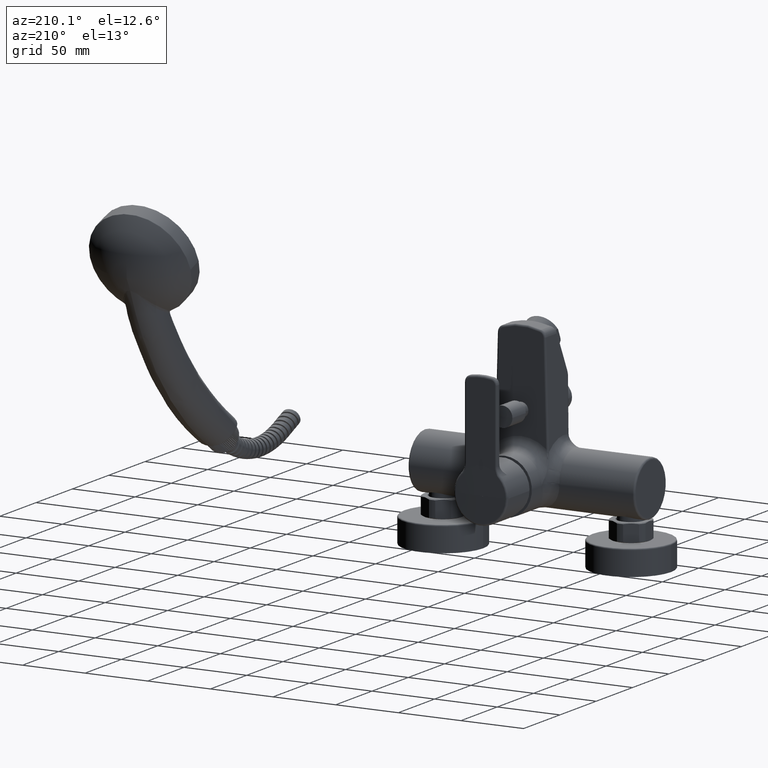
[diagram: clean part render]
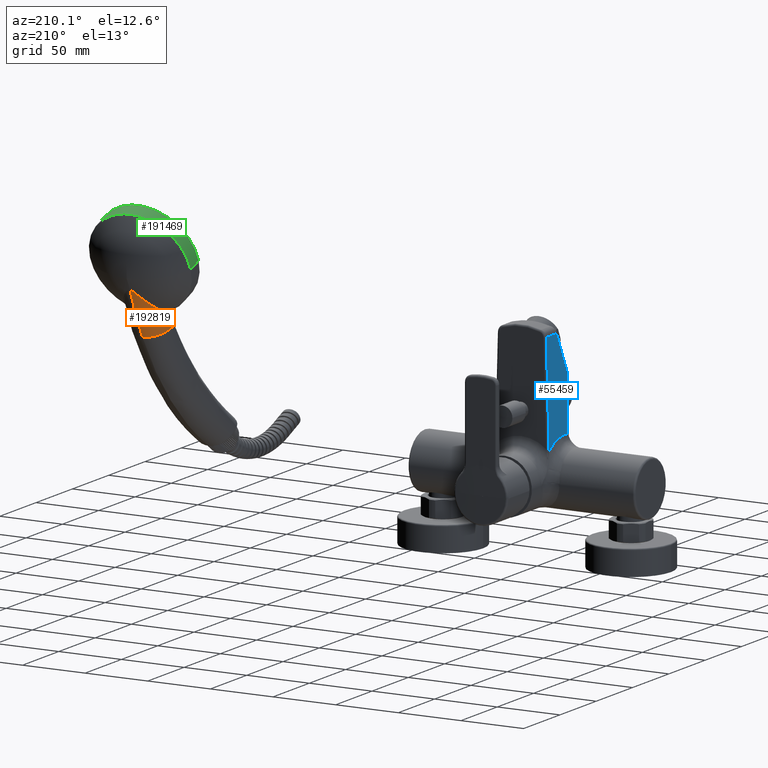
[diagram: same view with three faces highlighted in distinct colors, each labeled with its STEP entity id]
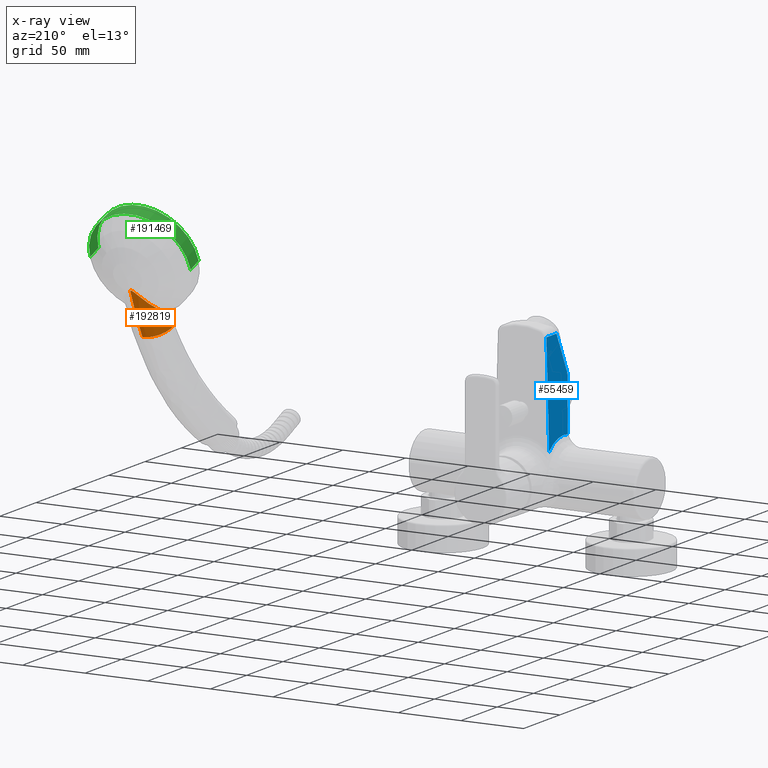
[diagram: x-ray of the same camera — body ghosted, the three highlighted faces saturated]
A machine part, auxiliary view with three faces highlighted in distinct colors.
The next image is the same camera in x-ray (body ghosted, the three faces saturated) — at least one of them is partly hidden behind the body in this view.
Their STEP definitions:

[orange] entity #192819 — the highlighted face is a freeform B-spline surface patch.
#184497=CARTESIAN_POINT('',(1.850624867143E2,1.892127236692E2,
1.297713518177E2));
#184498=CARTESIAN_POINT('',(1.850780240706E2,1.894557834207E2,
1.298614298418E2));
#184499=CARTESIAN_POINT('',(1.851152092229E2,1.899580679498E2,
1.300513541668E2));
#184500=CARTESIAN_POINT('',(1.851926254431E2,1.907615677036E2,
1.303692618716E2));
#184501=CARTESIAN_POINT('',(1.852937346329E2,1.916042730789E2,
1.307149639110E2));
#184502=CARTESIAN_POINT('',(1.854198920306E2,1.924768572541E2,
1.310857594720E2));
#184503=CARTESIAN_POINT('',(1.855711064913E2,1.933675174570E2,
1.314789299215E2));
#184504=CARTESIAN_POINT('',(1.857460994140E2,1.942644063929E2,
1.318903034666E2));
#184505=CARTESIAN_POINT('',(1.859444943816E2,1.951642519032E2,
1.323191295940E2));
#184506=CARTESIAN_POINT('',(1.861668992493E2,1.960686381998E2,
1.327670154797E2));
#184507=CARTESIAN_POINT('',(1.864136193710E2,1.969777198775E2,
1.332350324772E2));
#184508=CARTESIAN_POINT('',(1.866851043089E2,1.978923387437E2,
1.337247137381E2));
#184509=CARTESIAN_POINT('',(1.869804478624E2,1.988087404739E2,
1.342349030873E2));
#184510=CARTESIAN_POINT('',(1.872985174833E2,1.997219950527E2,
1.347635979534E2));
#184511=CARTESIAN_POINT('',(1.876378251103E2,2.006274455421E2,
1.353087627556E2));
#184512=CARTESIAN_POINT('',(1.879972444269E2,2.015224250460E2,
1.358699247788E2));
#184513=CARTESIAN_POINT('',(1.883752689983E2,2.024038741667E2,
1.364463865329E2));
#184514=CARTESIAN_POINT('',(1.887713092749E2,2.032722590584E2,
1.370390317668E2));
#184515=CARTESIAN_POINT('',(1.891860970682E2,2.041303587801E2,
1.376505004635E2));
#184516=CARTESIAN_POINT('',(1.896194435848E2,2.049780893487E2,
1.382815997510E2));
#184517=CARTESIAN_POINT('',(1.900692512086E2,2.058117473686E2,
1.389301336613E2));
#184518=CARTESIAN_POINT('',(1.905346769702E2,2.066289112650E2,
1.395945267956E2));
#184519=CARTESIAN_POINT('',(1.910145256215E2,2.074263394326E2,
1.402722175652E2));
#184520=CARTESIAN_POINT('',(1.915065752976E2,2.081999169753E2,
1.409594042121E2));
#184521=CARTESIAN_POINT('',(1.920085487259E2,2.089463994393E2,
1.416524475380E2));
#184522=CARTESIAN_POINT('',(1.925198682757E2,2.096653348881E2,
1.423502227271E2));
#184523=CARTESIAN_POINT('',(1.930391506762E2,2.103552577824E2,
1.430506120811E2));
#184524=CARTESIAN_POINT('',(1.935644997697E2,2.110149040622E2,
1.437520343245E2));
#184525=CARTESIAN_POINT('',(1.940864834381E2,2.116342468598E2,
1.444410469551E2));
#184526=CARTESIAN_POINT('',(1.945898337403E2,2.121970264814E2,
1.450935188456E2));
#184527=CARTESIAN_POINT('',(1.950560406835E2,2.126834801542E2,
1.456776943571E2));
#184528=CARTESIAN_POINT('',(1.954795910584E2,2.130957326089E2,
1.461888166904E2));
#184529=CARTESIAN_POINT('',(1.958628259733E2,2.134435964104E2,
1.466324808498E2));
#184530=CARTESIAN_POINT('',(1.962100291606E2,2.137382466518E2,
1.470181885325E2));
#184531=CARTESIAN_POINT('',(1.965252040996E2,2.139892280278E2,
1.473547424988E2));
#184532=CARTESIAN_POINT('',(1.968111405568E2,2.142029137623E2,
1.476466261091E2));
#184533=CARTESIAN_POINT('',(1.970708026747E2,2.143839167738E2,
1.478979283441E2));
#184534=CARTESIAN_POINT('',(1.973086919898E2,2.145377430502E2,
1.481141662329E2));
#184535=CARTESIAN_POINT('',(1.975292087325E2,2.146696581586E2,
1.483014766394E2));
#184536=CARTESIAN_POINT('',(1.977379583517E2,2.147849343568E2,
1.484665716903E2));
#184537=CARTESIAN_POINT('',(1.979374238668E2,2.148863346795E2,
1.486128962773E2));
#184538=CARTESIAN_POINT('',(1.981280283479E2,2.149753430022E2,
1.487422037718E2));
#184539=CARTESIAN_POINT('',(1.983101131499E2,2.150533185765E2,
1.488561836809E2));
#184540=CARTESIAN_POINT('',(1.984833406394E2,2.151210393725E2,
1.489558108460E2));
#184541=CARTESIAN_POINT('',(1.986478461347E2,2.151794389809E2,
1.490422579160E2));
#184542=CARTESIAN_POINT('',(1.988041723457E2,2.152294713942E2,
1.491167105807E2));
#184543=CARTESIAN_POINT('',(1.989529363942E2,2.152720677713E2,
1.491804159504E2));
#184544=CARTESIAN_POINT('',(1.990950599831E2,2.153081190103E2,
1.492345821112E2));
#184545=CARTESIAN_POINT('',(1.992316565003E2,2.153384391132E2,
1.492803342025E2));
#184546=CARTESIAN_POINT('',(1.993642109753E2,2.153637641781E2,
1.493187007053E2));
#184547=CARTESIAN_POINT('',(1.994931960651E2,2.153844984784E2,
1.493502511294E2));
#184548=CARTESIAN_POINT('',(1.996186528971E2,2.154009417222E2,
1.493754043459E2));
#184549=CARTESIAN_POINT('',(1.997408471756E2,2.154133958429E2,
1.493945826839E2));
#184550=CARTESIAN_POINT('',(1.998601072572E2,2.154221185927E2,
1.494081390421E2));
#184551=CARTESIAN_POINT('',(1.999767583580E2,2.154273422696E2,
1.494164064186E2));
#184552=CARTESIAN_POINT('',(2.000532204599E2,2.154285754082E2,
1.494184633578E2));
#184553=CARTESIAN_POINT('',(2.000910655965E2,2.154286663787E2,
1.494186979510E2));
#184555=CARTESIAN_POINT('',(2.000910655965E2,2.154286663787E2,
1.494186979510E2));
#184588=CARTESIAN_POINT('',(1.850001122728E2,1.874907710825E2,
1.296886292219E2));
#184590=CARTESIAN_POINT('',(1.850624867143E2,1.892127236692E2,
1.297713518177E2));
#184988=CARTESIAN_POINT('',(1.850001143063E2,1.874917858154E2,
1.296883949699E2));
#184989=CARTESIAN_POINT('',(1.849972612442E2,1.874273168792E2,
1.295405579743E2));
#184990=CARTESIAN_POINT('',(1.849870144331E2,1.871906037385E2,
1.290115472802E2));
#184991=CARTESIAN_POINT('',(1.849694140287E2,1.867518766906E2,
1.281149971761E2));
#184992=CARTESIAN_POINT('',(1.849474263759E2,1.861409719791E2,
1.270186219620E2));
#184993=CARTESIAN_POINT('',(1.849183135538E2,1.852685972066E2,
1.255908797364E2));
#184994=CARTESIAN_POINT('',(1.848673652033E2,1.837441495945E2,
1.230914441629E2));
#184995=CARTESIAN_POINT('',(1.848238128462E2,1.824071713927E2,
1.209675837164E2));
#184996=CARTESIAN_POINT('',(1.847948247772E2,1.815053751702E2,
1.195584480763E2));
#184998=CARTESIAN_POINT('',(1.847948250883E2,1.815051296227E2,
1.195585591063E2));
#184999=CARTESIAN_POINT('',(1.847947800520E2,1.825298000450E2,
1.191694691485E2));
#185000=CARTESIAN_POINT('',(1.849604834924E2,1.845801641407E2,
1.183908597282E2));
#185001=CARTESIAN_POINT('',(1.857095702806E2,1.875822141257E2,
1.172508580853E2));
#185002=CARTESIAN_POINT('',(1.869621550317E2,1.904360972238E2,
1.161670599246E2));
#185003=CARTESIAN_POINT('',(1.887203823883E2,1.930486177249E2,
1.151748699734E2));
#185004=CARTESIAN_POINT('',(1.909787680803E2,1.953047424931E2,
1.143179657867E2));
#185005=CARTESIAN_POINT('',(1.937034361761E2,1.970612235208E2,
1.136507421849E2));
#185006=CARTESIAN_POINT('',(1.967982679342E2,1.981674005198E2,
1.132304308666E2));
#185007=CARTESIAN_POINT('',(1.989917018136E2,1.984085355606E2,
1.131386455220E2));
#185008=CARTESIAN_POINT('',(2.000878135453E2,1.984085518982E2,
1.131385398571E2));
#185010=CARTESIAN_POINT('',(2.000878135453E2,1.984085518982E2,
1.131385398571E2));
#185011=CARTESIAN_POINT('',(2.000879419194E2,1.992313855772E2,
1.145938329263E2));
#185012=CARTESIAN_POINT('',(2.000881359195E2,2.004449428763E2,
1.167884966650E2));
#185013=CARTESIAN_POINT('',(2.000883647092E2,2.018240648949E2,
1.193687493900E2));
#185014=CARTESIAN_POINT('',(2.000884961395E2,2.026016131702E2,
1.208487451574E2));
#185015=CARTESIAN_POINT('',(2.000885950564E2,2.031794981130E2,
1.219614976639E2));
#185016=CARTESIAN_POINT('',(2.000886943154E2,2.037520940313E2,
1.230769810804E2));
#185017=CARTESIAN_POINT('',(2.000887939143E2,2.043193878326E2,
1.241951702041E2));
#185018=CARTESIAN_POINT('',(2.000888938506E2,2.048813665433E2,
1.253160399618E2));
#185019=CARTESIAN_POINT('',(2.000890943941E2,2.059946675272E2,
1.275630904371E2));
#185020=CARTESIAN_POINT('',(2.000898018359E2,2.097962026701E2,
1.354705689566E2));
#185021=CARTESIAN_POINT('',(2.000904971758E2,2.130573480009E2,
1.431698484118E2));
#185022=CARTESIAN_POINT('',(2.000910655965E2,2.154286663787E2,
1.494186979510E2));
#185024=CARTESIAN_POINT('',(1.850624872213E2,1.892127228091E2,
1.297713515144E2));
#185025=CARTESIAN_POINT('',(1.850590432882E2,1.891588176148E2,
1.297511571484E2));
#185026=CARTESIAN_POINT('',(1.850525486845E2,1.890536300906E2,
1.297141071999E2));
#185027=CARTESIAN_POINT('',(1.850439241142E2,1.889039873638E2,
1.296688777798E2));
#185028=CARTESIAN_POINT('',(1.850363308926E2,1.887621522469E2,
1.296328292130E2));
#185029=CARTESIAN_POINT('',(1.850296829875E2,1.886277324027E2,
1.296051713902E2));
#185030=CARTESIAN_POINT('',(1.850238927805E2,1.885001473536E2,
1.295850447299E2));
#185031=CARTESIAN_POINT('',(1.850188846147E2,1.883789017827E2,
1.295717537386E2));
#185032=CARTESIAN_POINT('',(1.850145906379E2,1.882635245652E2,
1.295646957012E2));
#185033=CARTESIAN_POINT('',(1.850109461457E2,1.881534299731E2,
1.295633377276E2));
#185034=CARTESIAN_POINT('',(1.850078945984E2,1.880480232521E2,
1.295672548642E2));
#185035=CARTESIAN_POINT('',(1.850053847982E2,1.879465390293E2,
1.295761581646E2));
#185036=CARTESIAN_POINT('',(1.850033847860E2,1.878485831263E2,
1.295898283384E2));
#185037=CARTESIAN_POINT('',(1.850018732438E2,1.877541294067E2,
1.296080254893E2));
#185038=CARTESIAN_POINT('',(1.850008271196E2,1.876631297358E2,
1.296305254862E2));
#185039=CARTESIAN_POINT('',(1.850002235444E2,1.875751513707E2,
1.296572442127E2));
#185040=CARTESIAN_POINT('',(1.850001060643E2,1.875191659877E2,
1.296775752871E2));
#185041=CARTESIAN_POINT('',(1.850001143063E2,1.874917858154E2,
1.296883949699E2));
#191282=VERTEX_POINT('',#184555);
#191284=VERTEX_POINT('',#184590);
#191285=VERTEX_POINT('',#184588);
#191300=VERTEX_POINT('',#185010);
#191301=VERTEX_POINT('',#184996);
#192666=CARTESIAN_POINT('',(1.855116604351E2,1.974842962492E2,
1.566614524212E2));
#192667=CARTESIAN_POINT('',(1.854930628072E2,1.985922157953E2,
1.562407347172E2));
#192668=CARTESIAN_POINT('',(1.857010435764E2,2.007249836242E2,
1.554308674872E2));
#192669=CARTESIAN_POINT('',(1.865110437118E2,2.037975614522E2,
1.542644246913E2));
#192670=CARTESIAN_POINT('',(1.877101270258E2,2.066680667118E2,
1.531747887066E2));
#192671=CARTESIAN_POINT('',(1.893094107754E2,2.093641495212E2,
1.521512010533E2));
#192672=CARTESIAN_POINT('',(1.913339074309E2,2.118031111711E2,
1.512248193402E2));
#192673=CARTESIAN_POINT('',(1.938265011766E2,2.138419211288E2,
1.504498800357E2));
#192674=CARTESIAN_POINT('',(1.968750302085E2,2.152807185696E2,
1.499025827925E2));
#192675=CARTESIAN_POINT('',(1.991659690180E2,2.155947101617E2,
1.497829716020E2));
#192676=CARTESIAN_POINT('',(2.003492967385E2,2.155670850806E2,
1.497933547652E2));
#192677=CARTESIAN_POINT('',(1.853904119599E2,1.950612050264E2,
1.502846733247E2));
#192678=CARTESIAN_POINT('',(1.853756387821E2,1.961757755438E2,
1.498617267237E2));
#192679=CARTESIAN_POINT('',(1.855391669292E2,1.983319376195E2,
1.490427559009E2));
#192680=CARTESIAN_POINT('',(1.862967112452E2,2.014699336704E2,
1.478451198493E2));
#192681=CARTESIAN_POINT('',(1.874847344086E2,2.044101777526E2,
1.467206896335E2));
#192682=CARTESIAN_POINT('',(1.891277637631E2,2.071516615567E2,
1.456741549392E2));
#192683=CARTESIAN_POINT('',(1.912350560996E2,2.095837522726E2,
1.447515768694E2));
#192684=CARTESIAN_POINT('',(1.938087869443E2,2.115529353539E2,
1.440124413587E2));
#192685=CARTESIAN_POINT('',(1.968862788344E2,2.128958485333E2,
1.435134952670E2));
#192686=CARTESIAN_POINT('',(1.991646777372E2,2.131837314069E2,
1.434068398156E2));
#192687=CARTESIAN_POINT('',(2.003487750947E2,2.131584382895E2,
1.434163056682E2));
#192688=CARTESIAN_POINT('',(1.852396426084E2,1.920435095466E2,
1.423441758459E2));
#192689=CARTESIAN_POINT('',(1.852276736586E2,1.931533374363E2,
1.419233477493E2));
#192690=CARTESIAN_POINT('',(1.853586078395E2,1.953048273545E2,
1.411060374336E2));
#192691=CARTESIAN_POINT('',(1.860796657398E2,1.984514032060E2,
1.399008193971E2));
#192692=CARTESIAN_POINT('',(1.872667605842E2,2.013993465602E2,
1.387677784594E2));
#192693=CARTESIAN_POINT('',(1.889538011882E2,2.041272536451E2,
1.377224086767E2));
#192694=CARTESIAN_POINT('',(1.911370474543E2,2.065062608440E2,
1.368205956389E2));
#192695=CARTESIAN_POINT('',(1.937853973776E2,2.083787891298E2,
1.361243857187E2));
#192696=CARTESIAN_POINT('',(1.968940630569E2,2.096142529671E2,
1.356748546817E2));
#192697=CARTESIAN_POINT('',(1.991638126807E2,2.098738106415E2,
1.355823523419E2));
#192698=CARTESIAN_POINT('',(2.003480253013E2,2.098515105488E2,
1.355916796465E2));
#192699=CARTESIAN_POINT('',(1.850817199826E2,1.888894286605E2,
1.340076419057E2));
#192700=CARTESIAN_POINT('',(1.850701779837E2,1.899772441829E2,
1.335969464946E2));
#192701=CARTESIAN_POINT('',(1.851965170772E2,1.920799906283E2,
1.328024434628E2));
#192702=CARTESIAN_POINT('',(1.859163825085E2,1.951414510369E2,
1.316381790291E2));
#192703=CARTESIAN_POINT('',(1.871185623151E2,1.979953806434E2,
1.305500734047E2));
#192704=CARTESIAN_POINT('',(1.888374377564E2,2.006186325375E2,
1.295530156688E2));
#192705=CARTESIAN_POINT('',(1.910644899439E2,2.028844922503E2,
1.287006549833E2));
#192706=CARTESIAN_POINT('',(1.937566593372E2,2.046425117165E2,
1.280513957090E2));
#192707=CARTESIAN_POINT('',(1.968923663424E2,2.057795534240E2,
1.276399201371E2));
#192708=CARTESIAN_POINT('',(1.991632575071E2,2.060128900079E2,
1.275563557686E2));
#192709=CARTESIAN_POINT('',(2.003472794118E2,2.059924553528E2,
1.275639354679E2));
#192710=CARTESIAN_POINT('',(1.850372754595E2,1.879964757019E2,
1.316623136102E2));
#192711=CARTESIAN_POINT('',(1.850256812442E2,1.890771740779E2,
1.312549428311E2));
#192712=CARTESIAN_POINT('',(1.851527618587E2,1.911637404655E2,
1.304681578404E2));
#192713=CARTESIAN_POINT('',(1.858748023461E2,1.941957125951E2,
1.293185440413E2));
#192714=CARTESIAN_POINT('',(1.870822705596E2,1.970171212485E2,
1.282465574850E2));
#192715=CARTESIAN_POINT('',(1.888090493899E2,1.996056400379E2,
1.272660979069E2));
#192716=CARTESIAN_POINT('',(1.910459081589E2,2.018365573294E2,
1.264293309705E2));
#192717=CARTESIAN_POINT('',(1.937480316779E2,2.035621455890E2,
1.257932126575E2));
#192718=CARTESIAN_POINT('',(1.968910327924E2,2.046729404570E2,
1.253913332702E2));
#192719=CARTESIAN_POINT('',(1.991630642887E2,2.048992150075E2,
1.253098149433E2));
#192720=CARTESIAN_POINT('',(2.003470889835E2,2.048791768777E2,
1.253167765154E2));
#192721=CARTESIAN_POINT('',(1.850150529696E2,1.875595800987E2,
1.304857984681E2));
#192722=CARTESIAN_POINT('',(1.850033985848E2,1.886360752296E2,
1.300803692522E2));
#192723=CARTESIAN_POINT('',(1.851312549978E2,1.907130523568E2,
1.292981206562E2));
#192724=CARTESIAN_POINT('',(1.858548772552E2,1.937274743464E2,
1.281571824350E2));
#192725=CARTESIAN_POINT('',(1.870651883259E2,1.965296770430E2,
1.270946964650E2));
#192726=CARTESIAN_POINT('',(1.887956981899E2,1.990980796903E2,
1.261238626036E2));
#192727=CARTESIAN_POINT('',(1.910369497754E2,2.013093688641E2,
1.252958737545E2));
#192728=CARTESIAN_POINT('',(1.937435750469E2,2.030174370927E2,
1.246668168735E2));
#192729=CARTESIAN_POINT('',(1.968901701609E2,2.041145030560E2,
1.242698256435E2));
#192730=CARTESIAN_POINT('',(1.991629515349E2,2.043370699476E2,
1.241892601290E2));
#192731=CARTESIAN_POINT('',(2.003470000759E2,2.043172023900E2,
1.241958366233E2));
#192732=CARTESIAN_POINT('',(1.849928545668E2,1.870648909631E2,
1.293322606888E2));
#192733=CARTESIAN_POINT('',(1.849811030861E2,1.881394823947E2,
1.289278874665E2));
#192734=CARTESIAN_POINT('',(1.851101587587E2,1.902118110246E2,
1.281482203174E2));
#192735=CARTESIAN_POINT('',(1.858359257364E2,1.932167447461E2,
1.270127370038E2));
#192736=CARTESIAN_POINT('',(1.870493607550E2,1.960078807967E2,
1.259564881876E2));
#192737=CARTESIAN_POINT('',(1.887834556499E2,1.985642530612E2,
1.249920282696E2));
#192738=CARTESIAN_POINT('',(1.910286331662E2,2.007635947912E2,
1.241697246026E2));
#192739=CARTESIAN_POINT('',(1.937392741083E2,2.024609300484E2,
1.235450285002E2));
#192740=CARTESIAN_POINT('',(1.968893194328E2,2.035494049922E2,
1.231510341491E2));
#192741=CARTESIAN_POINT('',(1.991628964621E2,2.037696305845E2,
1.230711935158E2));
#192742=CARTESIAN_POINT('',(2.003468973726E2,2.037499215511E2,
1.230776238202E2));
#192743=CARTESIAN_POINT('',(1.849707361605E2,1.865131002902E2,
1.282048097231E2));
#192744=CARTESIAN_POINT('',(1.849588477878E2,1.875880571088E2,
1.278004705331E2));
#192745=CARTESIAN_POINT('',(1.850895259762E2,1.896606221181E2,
1.270211536644E2));
#192746=CARTESIAN_POINT('',(1.858180095249E2,1.926640514954E2,
1.258874721557E2));
#192747=CARTESIAN_POINT('',(1.870348616908E2,1.954521860871E2,
1.248337670766E2));
#192748=CARTESIAN_POINT('',(1.887724059797E2,1.980045387036E2,
1.238720037305E2));
#192749=CARTESIAN_POINT('',(1.910210459826E2,2.001995350365E2,
1.230518842844E2));
#192750=CARTESIAN_POINT('',(1.937352078484E2,2.018928394490E2,
1.224284709504E2));
#192751=CARTESIAN_POINT('',(1.968885329633E2,2.029777648623E2,
1.220352399812E2));
#192752=CARTESIAN_POINT('',(1.991629172676E2,2.031969420013E2,
1.219557062935E2));
#192753=CARTESIAN_POINT('',(2.003467759091E2,2.031773384659E2,
1.219621445099E2));
#192754=CARTESIAN_POINT('',(1.849487685658E2,1.859015844006E2,
1.271087052047E2));
#192755=CARTESIAN_POINT('',(1.849367003098E2,1.869792897154E2,
1.267031474657E2));
#192756=CARTESIAN_POINT('',(1.850694189468E2,1.890572413132E2,
1.259214712331E2));
#192757=CARTESIAN_POINT('',(1.858011844659E2,1.920676223047E2,
1.247851705359E2));
#192758=CARTESIAN_POINT('',(1.870217412216E2,1.948613100590E2,
1.237295455685E2));
#192759=CARTESIAN_POINT('',(1.887625932241E2,1.974181283734E2,
1.227660423345E2));
#192760=CARTESIAN_POINT('',(1.910142251253E2,1.996167966725E2,
1.219438915436E2));
#192761=CARTESIAN_POINT('',(1.937314041097E2,2.013130839193E2,
1.213180462085E2));
#192762=CARTESIAN_POINT('',(1.968878265004E2,2.023996688767E2,
1.209228058352E2));
#192763=CARTESIAN_POINT('',(1.991630189839E2,2.026190648122E2,
1.208429011384E2));
#192764=CARTESIAN_POINT('',(2.003466343015E2,2.025994538196E2,
1.208494014501E2));
#192765=CARTESIAN_POINT('',(1.849196896321E2,1.850278912027E2,
1.256816255346E2));
#192766=CARTESIAN_POINT('',(1.849073249409E2,1.861115089749E2,
1.252730959160E2));
#192767=CARTESIAN_POINT('',(1.850433075385E2,1.882014767355E2,
1.244853933045E2));
#192768=CARTESIAN_POINT('',(1.857801558590E2,1.912289714746E2,
1.233409809254E2));
#192769=CARTESIAN_POINT('',(1.870059795901E2,1.940379717852E2,
1.222781582489E2));
#192770=CARTESIAN_POINT('',(1.887510021694E2,1.966086388972E2,
1.213076977779E2));
#192771=CARTESIAN_POINT('',(1.910059648134E2,1.988197879547E2,
1.204783526636E2));
#192772=CARTESIAN_POINT('',(1.937264985383E2,2.005268488015E2,
1.198451962714E2));
#192773=CARTESIAN_POINT('',(1.968868618458E2,2.016207761958E2,
1.194441205553E2));
#192774=CARTESIAN_POINT('',(1.991632163055E2,2.018416629334E2,
1.193628478287E2));
#192775=CARTESIAN_POINT('',(2.003464312066E2,2.018218840640E2,
1.193694065465E2));
#192776=CARTESIAN_POINT('',(1.848664884277E2,1.834315745574E2,
1.230690702366E2));
#192777=CARTESIAN_POINT('',(1.848534560668E2,1.845250880678E2,
1.226555823401E2));
#192778=CARTESIAN_POINT('',(1.849968976986E2,1.866346583195E2,
1.218580305418E2));
#192779=CARTESIAN_POINT('',(1.857448697438E2,1.896883724345E2,
1.207013463846E2));
#192780=CARTESIAN_POINT('',(1.869810748831E2,1.925198688283E2,
1.196281518516E2));
#192781=CARTESIAN_POINT('',(1.887329359835E2,1.951109615880E2,
1.186474240343E2));
#192782=CARTESIAN_POINT('',(1.909921330573E2,1.973417670146E2,
1.178064462747E2));
#192783=CARTESIAN_POINT('',(1.937170626287E2,1.990677189720E2,
1.171602316828E2));
#192784=CARTESIAN_POINT('',(1.968844235151E2,2.001758039803E2,
1.167481462141E2));
#192785=CARTESIAN_POINT('',(1.991635337896E2,2.003997375833E2,
1.166644455857E2));
#192786=CARTESIAN_POINT('',(2.003460784632E2,2.003797087706E2,
1.166712673233E2));
#192787=CARTESIAN_POINT('',(1.848207116446E2,1.820197171596E2,
1.208339846839E2));
#192788=CARTESIAN_POINT('',(1.848068682464E2,1.831217672296E2,
1.204161228308E2));
#192789=CARTESIAN_POINT('',(1.849594555026E2,1.852476103824E2,
1.196101084332E2));
#192790=CARTESIAN_POINT('',(1.857203774999E2,1.883209606102E2,
1.184439746900E2));
#192791=CARTESIAN_POINT('',(1.869669378530E2,1.911682416475E2,
1.173633193259E2));
#192792=CARTESIAN_POINT('',(1.887232952539E2,1.937742862747E2,
1.163746890276E2));
#192793=CARTESIAN_POINT('',(1.909827782974E2,1.960219279529E2,
1.155232495535E2));
#192794=CARTESIAN_POINT('',(1.937083104969E2,1.977672858227E2,
1.148636870689E2));
#192795=CARTESIAN_POINT('',(1.968812475144E2,1.988920672127E2,
1.144395715361E2));
#192796=CARTESIAN_POINT('',(1.991637821289E2,1.991199283466E2,
1.143533484778E2));
#192797=CARTESIAN_POINT('',(2.003457937415E2,1.990996835376E2,
1.143606356181E2));
#192798=CARTESIAN_POINT('',(1.847894874806E2,1.810427544689E2,
1.193139650958E2));
#192799=CARTESIAN_POINT('',(1.847749806853E2,1.821504795978E2,
1.188931648395E2));
#192800=CARTESIAN_POINT('',(1.849350849112E2,1.842867952698E2,
1.180815937375E2));
#192801=CARTESIAN_POINT('',(1.857064246472E2,1.873715754937E2,
1.169098900114E2));
#192802=CARTESIAN_POINT('',(1.869607162541E2,1.902273427629E2,
1.158251944903E2));
#192803=CARTESIAN_POINT('',(1.887194915295E2,1.928417649429E2,
1.148319652290E2));
#192804=CARTESIAN_POINT('',(1.909775970845E2,1.951003207621E2,
1.139734988090E2));
#192805=CARTESIAN_POINT('',(1.937020499265E2,1.968599596697E2,
1.133041042134E2));
#192806=CARTESIAN_POINT('',(1.968785797955E2,1.979979505386E2,
1.128707671830E2));
#192807=CARTESIAN_POINT('',(1.991639411298E2,1.982290396363E2,
1.127826642147E2));
#192808=CARTESIAN_POINT('',(2.003456080729E2,1.982086600708E2,
1.127903768558E2));
#192809=B_SPLINE_SURFACE_WITH_KNOTS('',3,3,((#192666,#192667,#192668,#192669,
#192670,#192671,#192672,#192673,#192674,#192675,#192676),(#192677,#192678,
#192679,#192680,#192681,#192682,#192683,#192684,#192685,#192686,#192687),(
#192688,#192689,#192690,#192691,#192692,#192693,#192694,#192695,#192696,#192697,
#192698),(#192699,#192700,#192701,#192702,#192703,#192704,#192705,#192706,
#192707,#192708,#192709),(#192710,#192711,#192712,#192713,#192714,#192715,
#192716,#192717,#192718,#192719,#192720),(#192721,#192722,#192723,#192724,
#192725,#192726,#192727,#192728,#192729,#192730,#192731),(#192732,#192733,
#192734,#192735,#192736,#192737,#192738,#192739,#192740,#192741,#192742),(
#192743,#192744,#192745,#192746,#192747,#192748,#192749,#192750,#192751,#192752,
#192753),(#192754,#192755,#192756,#192757,#192758,#192759,#192760,#192761,
#192762,#192763,#192764),(#192765,#192766,#192767,#192768,#192769,#192770,
#192771,#192772,#192773,#192774,#192775),(#192776,#192777,#192778,#192779,
#192780,#192781,#192782,#192783,#192784,#192785,#192786),(#192787,#192788,
#192789,#192790,#192791,#192792,#192793,#192794,#192795,#192796,#192797),(
#192798,#192799,#192800,#192801,#192802,#192803,#192804,#192805,#192806,#192807,
#192808)),.UNSPECIFIED.,.F.,.F.,.F.,(4,1,1,1,1,1,1,1,1,1,4),(4,1,1,1,1,1,1,1,4),
(1.585951787834E-1,5.833333333333E-1,6.875E-1,7.135416666667E-1,
7.395833333333E-1,7.65625E-1,7.916666666667E-1,8.177083333333E-1,8.4375E-1,
8.958333333333E-1,1.008330337491E0),(-9.988476581407E-3,1.25E-1,2.5E-1,3.75E-1,
5.E-1,6.25E-1,7.5E-1,8.75E-1,1.009802189478E0),.UNSPECIFIED.);
#192811=ORIENTED_EDGE('',*,*,#192810,.T.);
#192813=ORIENTED_EDGE('',*,*,#192812,.T.);
#192814=ORIENTED_EDGE('',*,*,#192649,.T.);
#192815=ORIENTED_EDGE('',*,*,#191920,.F.);
#192816=ORIENTED_EDGE('',*,*,#191954,.T.);
#192817=EDGE_LOOP('',(#192811,#192813,#192814,#192815,#192816));
#192818=FACE_OUTER_BOUND('',#192817,.F.);
#192819=ADVANCED_FACE('',(#192818),#192809,.F.);
#184554=B_SPLINE_CURVE_WITH_KNOTS('',3,(#184497,#184498,#184499,#184500,#184501,
#184502,#184503,#184504,#184505,#184506,#184507,#184508,#184509,#184510,#184511,
#184512,#184513,#184514,#184515,#184516,#184517,#184518,#184519,#184520,#184521,
#184522,#184523,#184524,#184525,#184526,#184527,#184528,#184529,#184530,#184531,
#184532,#184533,#184534,#184535,#184536,#184537,#184538,#184539,#184540,#184541,
#184542,#184543,#184544,#184545,#184546,#184547,#184548,#184549,#184550,#184551,
#184552,#184553),.UNSPECIFIED.,.F.,.F.,(4,1,1,1,1,1,1,1,1,1,1,1,1,1,1,1,1,1,1,1,
1,1,1,1,1,1,1,1,1,1,1,1,1,1,1,1,1,1,1,1,1,1,1,1,1,1,1,1,1,1,1,1,1,1,4),(0.E0,
1.851851851852E-2,3.703703703704E-2,5.555555555556E-2,7.407407407407E-2,
9.259259259259E-2,1.111111111111E-1,1.296296296296E-1,1.481481481481E-1,
1.666666666667E-1,1.851851851852E-1,2.037037037037E-1,2.222222222222E-1,
2.407407407407E-1,2.592592592593E-1,2.777777777778E-1,2.962962962963E-1,
3.148148148148E-1,3.333333333333E-1,3.518518518519E-1,3.703703703704E-1,
3.888888888889E-1,4.074074074074E-1,4.259259259259E-1,4.444444444444E-1,
4.629629629630E-1,4.814814814815E-1,5.E-1,5.185185185185E-1,5.370370370370E-1,
5.555555555556E-1,5.740740740741E-1,5.925925925926E-1,6.111111111111E-1,
6.296296296296E-1,6.481481481481E-1,6.666666666667E-1,6.851851851852E-1,
7.037037037037E-1,7.222222222222E-1,7.407407407407E-1,7.592592592593E-1,
7.777777777778E-1,7.962962962963E-1,8.148148148148E-1,8.333333333333E-1,
8.518518518519E-1,8.703703703704E-1,8.888888888889E-1,9.074074074074E-1,
9.259259259259E-1,9.444444444444E-1,9.629629629630E-1,9.814814814815E-1,1.E0),
.UNSPECIFIED.);
#184997=B_SPLINE_CURVE_WITH_KNOTS('',3,(#184988,#184989,#184990,#184991,#184992,
#184993,#184994,#184995,#184996),.UNSPECIFIED.,.F.,.F.,(4,1,1,1,1,1,4),(0.E0,
4.108673229356E-2,1.476327940976E-1,2.541788559012E-1,3.607249177052E-1,
5.738170413128E-1,1.E0),.UNSPECIFIED.);
#185009=B_SPLINE_CURVE_WITH_KNOTS('',3,(#184998,#184999,#185000,#185001,#185002,
#185003,#185004,#185005,#185006,#185007,#185008),.UNSPECIFIED.,.F.,.F.,(4,1,1,1,
1,1,1,1,4),(0.E0,1.249949237304E-1,2.499956489030E-1,3.749963740756E-1,
4.999970992482E-1,6.249978244209E-1,7.499985495935E-1,8.749992747661E-1,1.E0),
.UNSPECIFIED.);
#185023=B_SPLINE_CURVE_WITH_KNOTS('',3,(#185010,#185011,#185012,#185013,#185014,
#185015,#185016,#185017,#185018,#185019,#185020,#185021,#185022),.UNSPECIFIED.,
.F.,.F.,(4,1,1,1,1,1,1,1,1,1,4),(0.E0,1.250331936500E-1,1.875499794887E-1,
2.188083724081E-1,2.500667653273E-1,2.813251582467E-1,3.125835511661E-1,
3.438419440854E-1,3.751003370047E-1,5.001339086821E-1,1.E0),.UNSPECIFIED.);
#185042=B_SPLINE_CURVE_WITH_KNOTS('',3,(#185024,#185025,#185026,#185027,#185028,
#185029,#185030,#185031,#185032,#185033,#185034,#185035,#185036,#185037,#185038,
#185039,#185040,#185041),.UNSPECIFIED.,.F.,.F.,(4,1,1,1,1,1,1,1,1,1,1,1,1,1,1,
4),(0.E0,6.666666666667E-2,1.333333333333E-1,2.E-1,2.666666666667E-1,
3.333333333333E-1,4.E-1,4.666666666667E-1,5.333333333333E-1,6.E-1,
6.666666666667E-1,7.333333333333E-1,8.E-1,8.666666666667E-1,9.333333333333E-1,
1.E0),.UNSPECIFIED.);
#191920=EDGE_CURVE('',#191284,#191282,#184554,.T.);
#191954=EDGE_CURVE('',#191284,#191285,#185042,.T.);
#192649=EDGE_CURVE('',#191300,#191282,#185023,.T.);
#192810=EDGE_CURVE('',#191285,#191301,#184997,.T.);
#192812=EDGE_CURVE('',#191301,#191300,#185009,.T.);

[blue] entity #55459 — the highlighted planar face has unit normal (-0.9996, 0, 0.0273).
#4663=CARTESIAN_POINT('',(-2.008224333500E1,-7.127864215709E0,
7.031884352193E1));
#4664=CARTESIAN_POINT('',(-2.011394505244E1,-7.084050725611E0,
6.915627976752E1));
#4665=CARTESIAN_POINT('',(-2.017740803356E1,-6.995063303284E0,
6.682896854254E1));
#4666=CARTESIAN_POINT('',(-2.027289350780E1,-6.857937895486E0,
6.332733010568E1));
#4667=CARTESIAN_POINT('',(-2.036833537770E1,-6.718263848445E0,
5.982729071603E1));
#4668=CARTESIAN_POINT('',(-2.046341586335E1,-6.577151813994E0,
5.634050399375E1));
#4669=CARTESIAN_POINT('',(-2.055823170669E1,-6.435101550510E0,
5.286342222053E1));
#4670=CARTESIAN_POINT('',(-2.065403732231E1,-6.290844359248E0,
4.935004356789E1));
#4671=CARTESIAN_POINT('',(-2.075191378497E1,-6.143368828179E0,
4.576072292068E1));
#4672=CARTESIAN_POINT('',(-2.085296605333E1,-5.991708937909E0,
4.205493927999E1));
#4673=CARTESIAN_POINT('',(-2.095837956537E1,-5.834942873406E0,
3.818922036558E1));
#4674=CARTESIAN_POINT('',(-2.106897260595E1,-5.672978368410E0,
3.413355792435E1));
#4675=CARTESIAN_POINT('',(-2.114760115489E1,-5.560364494333E0,
3.125009602150E1));
#4676=CARTESIAN_POINT('',(-2.118802027097E1,-5.503430924326E0,
2.976784809645E1));
#4678=CARTESIAN_POINT('',(-2.117437351220E1,0.E0,3.026830133818E1));
#4679=CARTESIAN_POINT('',(-2.117437430341E1,-2.388769965037E-1,
3.026829868638E1));
#4680=CARTESIAN_POINT('',(-2.117452678158E1,-7.131943443052E-1,
3.026266841753E1));
#4681=CARTESIAN_POINT('',(-2.117519495052E1,-1.413329606987E0,
3.023818086679E1));
#4682=CARTESIAN_POINT('',(-2.117628591526E1,-2.105217143591E0,
3.019816893268E1));
#4683=CARTESIAN_POINT('',(-2.117779214126E1,-2.790858012258E0,
3.014293370625E1));
#4684=CARTESIAN_POINT('',(-2.117971171674E1,-3.472613062169E0,
3.007253919671E1));
#4685=CARTESIAN_POINT('',(-2.118204275708E1,-4.151415041519E0,
2.998705412945E1));
#4686=CARTESIAN_POINT('',(-2.118479130154E1,-4.827990360807E0,
2.988626468131E1));
#4687=CARTESIAN_POINT('',(-2.118689459194E1,-5.278454988545E0,
2.980912034847E1));
#4688=CARTESIAN_POINT('',(-2.118802027097E1,-5.503430924326E0,
2.976784809645E1));
#4690=CARTESIAN_POINT('',(-2.139353984220E1,2.063178487116E1,2.223113493774E1));
#4691=CARTESIAN_POINT('',(-2.138749837582E1,2.039057205005E1,2.245268565831E1));
#4692=CARTESIAN_POINT('',(-2.137562242041E1,1.990097653158E1,2.288807058407E1));
#4693=CARTESIAN_POINT('',(-2.135843798042E1,1.914446537953E1,2.351830954263E1));
#4694=CARTESIAN_POINT('',(-2.134191103774E1,1.836723484097E1,2.412437079508E1));
#4695=CARTESIAN_POINT('',(-2.132606578838E1,1.757023185915E1,2.470545070886E1));
#4696=CARTESIAN_POINT('',(-2.131092662449E1,1.675456557391E1,2.526063235389E1));
#4697=CARTESIAN_POINT('',(-2.129651491689E1,1.592136477635E1,2.578913802851E1));
#4698=CARTESIAN_POINT('',(-2.128285068712E1,1.507187444952E1,2.629023189430E1));
#4699=CARTESIAN_POINT('',(-2.126994634296E1,1.420687261931E1,2.676345936475E1));
#4700=CARTESIAN_POINT('',(-2.125781156850E1,1.332707227149E1,2.720846519011E1));
#4701=CARTESIAN_POINT('',(-2.124645562238E1,1.243316817697E1,2.762490986867E1));
#4702=CARTESIAN_POINT('',(-2.123589240795E1,1.152612405417E1,2.801228352947E1));
#4703=CARTESIAN_POINT('',(-2.122613468286E1,1.060706071295E1,2.837011832645E1));
#4704=CARTESIAN_POINT('',(-2.121719379912E1,9.677130675624E0,2.869799795965E1));
#4705=CARTESIAN_POINT('',(-2.120907924873E1,8.737276568345E0,2.899557433531E1));
#4706=CARTESIAN_POINT('',(-2.120179707008E1,7.788307145759E0,2.926262602973E1));
#4707=CARTESIAN_POINT('',(-2.119535304018E1,6.831032402145E0,2.949894112786E1));
#4708=CARTESIAN_POINT('',(-2.118975514763E1,5.866409854409E0,2.970422689859E1));
#4709=CARTESIAN_POINT('',(-2.118501142406E1,4.895801827426E0,2.987818796327E1));
#4710=CARTESIAN_POINT('',(-2.118112704838E1,3.920514184916E0,3.002063754738E1));
#4711=CARTESIAN_POINT('',(-2.117810625051E1,2.941853771133E0,3.013140878755E1));
#4712=CARTESIAN_POINT('',(-2.117595218582E1,1.961213144725E0,3.021042980197E1));
#4713=CARTESIAN_POINT('',(-2.117465855423E1,9.799001657135E-1,
3.025776804402E1));
#4714=CARTESIAN_POINT('',(-2.117437849008E1,3.265616125487E-1,
3.026829169915E1));
#4715=CARTESIAN_POINT('',(-2.117437578212E1,-5.019859840504E-11,
3.026830110842E1));
#4717=CARTESIAN_POINT('',(-2.139353984220E1,2.063178487116E1,2.223113493774E1));
#4718=CARTESIAN_POINT('',(-2.138825288342E1,2.060978639271E1,2.242502267014E1));
#4719=CARTESIAN_POINT('',(-2.137772365711E1,2.057131995058E1,2.281101118758E1));
#4720=CARTESIAN_POINT('',(-2.136208066234E1,2.053014653666E1,2.338472621125E1));
#4721=CARTESIAN_POINT('',(-2.134658605119E1,2.050547404549E1,2.395292823421E1));
#4722=CARTESIAN_POINT('',(-2.133636331216E1,2.050000006322E1,2.432782023357E1));
#4723=CARTESIAN_POINT('',(-2.133127798719E1,2.05E1,2.451430839643E1));
#4725=DIRECTION('',(2.725866608529E-2,0.E0,9.996284135234E-1));
#4726=VECTOR('',#4725,7.853099112465E1);
#4727=CARTESIAN_POINT('',(-2.133127798719E1,2.05E1,2.451430839643E1));
#4728=LINE('',#4727,#4726);
#4729=DIRECTION('',(5.705857505382E-9,1.E0,2.092469829504E-7));
#4730=VECTOR('',#4729,1.403697410165E1);
#4731=CARTESIAN_POINT('',(-1.919062800286E1,6.463025898346E0,1.030161155296E2));
#4732=LINE('',#4731,#4730);
#4733=CARTESIAN_POINT('',(-1.919062800286E1,6.463025898346E0,1.030161155296E2));
#4734=CARTESIAN_POINT('',(-1.927286981459E1,5.107197834659E0,1.000001464392E2));
#4735=CARTESIAN_POINT('',(-1.942908696549E1,2.523501592368E0,9.427136131467E1));
#4736=CARTESIAN_POINT('',(-1.963850462132E1,-9.162765022667E-1,
8.659160688230E1));
#4737=CARTESIAN_POINT('',(-1.982509854662E1,-3.932385161520E0,
7.974884389463E1));
#4738=CARTESIAN_POINT('',(-1.993554859982E1,-5.678265150381E0,
7.569842592003E1));
#4739=CARTESIAN_POINT('',(-1.998717094136E1,-6.484417380251E0,
7.380533349525E1));
#4741=CARTESIAN_POINT('',(-1.998717094136E1,-6.484417380251E0,
7.380533349525E1));
#4742=CARTESIAN_POINT('',(-1.999015931792E1,-6.531084619411E0,
7.369574390223E1));
#4743=CARTESIAN_POINT('',(-1.999618726877E1,-6.619530773005E0,
7.347468719589E1));
#4744=CARTESIAN_POINT('',(-2.000539346143E1,-6.737674512734E0,
7.313707816801E1));
#4745=CARTESIAN_POINT('',(-2.001473241891E1,-6.840829663768E0,
7.279460039542E1));
#4746=CARTESIAN_POINT('',(-2.002418470183E1,-6.928798846525E0,
7.244796675813E1));
#4747=CARTESIAN_POINT('',(-2.003373368578E1,-7.001426431328E0,
7.209778690535E1));
#4748=CARTESIAN_POINT('',(-2.004335997384E1,-7.058561683251E0,
7.174477216028E1));
#4749=CARTESIAN_POINT('',(-2.005304380541E1,-7.100093024976E0,
7.138964718280E1));
#4750=CARTESIAN_POINT('',(-2.006276835355E1,-7.125953714789E0,
7.103302904896E1));
#4751=CARTESIAN_POINT('',(-2.007251327042E1,-7.136075548624E0,
7.067566395449E1));
#4752=CARTESIAN_POINT('',(-2.007900028917E1,-7.132346053372E0,
7.043777233360E1));
#4753=CARTESIAN_POINT('',(-2.008224333500E1,-7.127864215709E0,
7.031884352193E1));
#4755=CARTESIAN_POINT('',(-2.118802282765E1,-5.503366950740E0,
2.976785081922E1));
#42343=CARTESIAN_POINT('',(-2.117437493988E1,-4.465536834358E-10,
3.026830109843E1));
#42344=VERTEX_POINT('',#42343);
#42371=CARTESIAN_POINT('',(-1.919062792262E1,2.05E1,1.030161184725E2));
#42372=VERTEX_POINT('',#42371);
#42375=CARTESIAN_POINT('',(-2.133127798719E1,2.05E1,2.451430839643E1));
#42376=VERTEX_POINT('',#42375);
#42378=VERTEX_POINT('',#4717);
#42427=VERTEX_POINT('',#4755);
#42431=VERTEX_POINT('',#4663);
#42432=VERTEX_POINT('',#4741);
#42433=VERTEX_POINT('',#4733);
#55440=CARTESIAN_POINT('',(-1.899981420676E1,2.15E1,1.100136293330E2));
#55441=DIRECTION('',(-9.996284135231E-1,0.E0,2.725866609700E-2));
#55442=DIRECTION('',(0.E0,-1.E0,0.E0));
#55443=AXIS2_PLACEMENT_3D('',#55440,#55441,#55442);
#55444=PLANE('',#55443);
#55445=ORIENTED_EDGE('',*,*,#55223,.T.);
#55447=ORIENTED_EDGE('',*,*,#55446,.F.);
#55449=ORIENTED_EDGE('',*,*,#55448,.F.);
#55451=ORIENTED_EDGE('',*,*,#55450,.T.);
#55453=ORIENTED_EDGE('',*,*,#55452,.T.);
#55454=ORIENTED_EDGE('',*,*,#55420,.F.);
#55455=ORIENTED_EDGE('',*,*,#55097,.T.);
#55456=ORIENTED_EDGE('',*,*,#55168,.T.);
#55457=EDGE_LOOP('',(#55445,#55447,#55449,#55451,#55453,#55454,#55455,#55456));
#55458=FACE_OUTER_BOUND('',#55457,.F.);
#55459=ADVANCED_FACE('',(#55458),#55444,.T.);
#4677=B_SPLINE_CURVE_WITH_KNOTS('',3,(#4663,#4664,#4665,#4666,#4667,#4668,#4669,
#4670,#4671,#4672,#4673,#4674,#4675,#4676),.UNSPECIFIED.,.F.,.F.,(4,1,1,1,1,1,1,
1,1,1,1,4),(0.E0,9.090909090909E-2,1.818181818182E-1,2.727272727273E-1,
3.636363636364E-1,4.545454545455E-1,5.454545454545E-1,6.363636363636E-1,
7.272727272727E-1,8.181818181818E-1,9.090909090909E-1,1.E0),.UNSPECIFIED.);
#4689=B_SPLINE_CURVE_WITH_KNOTS('',3,(#4678,#4679,#4680,#4681,#4682,#4683,#4684,
#4685,#4686,#4687,#4688),.UNSPECIFIED.,.F.,.F.,(4,1,1,1,1,1,1,1,4),(0.E0,
1.25E-1,2.5E-1,3.75E-1,5.E-1,6.25E-1,7.5E-1,8.75E-1,1.E0),.UNSPECIFIED.);
#4716=B_SPLINE_CURVE_WITH_KNOTS('',3,(#4690,#4691,#4692,#4693,#4694,#4695,#4696,
#4697,#4698,#4699,#4700,#4701,#4702,#4703,#4704,#4705,#4706,#4707,#4708,#4709,
#4710,#4711,#4712,#4713,#4714,#4715),.UNSPECIFIED.,.F.,.F.,(4,1,1,1,1,1,1,1,1,1,
1,1,1,1,1,1,1,1,1,1,1,1,1,4),(0.E0,4.347826086957E-2,8.695652173913E-2,
1.304347826087E-1,1.739130434783E-1,2.173913043478E-1,2.608695652174E-1,
3.043478260870E-1,3.478260869565E-1,3.913043478261E-1,4.347826086957E-1,
4.782608695652E-1,5.217391304348E-1,5.652173913043E-1,6.086956521739E-1,
6.521739130435E-1,6.956521739130E-1,7.391304347826E-1,7.826086956522E-1,
8.260869565217E-1,8.695652173913E-1,9.130434782609E-1,9.565217391304E-1,1.E0),
.UNSPECIFIED.);
#4724=B_SPLINE_CURVE_WITH_KNOTS('',3,(#4717,#4718,#4719,#4720,#4721,#4722,
#4723),.UNSPECIFIED.,.F.,.F.,(4,1,1,1,4),(0.E0,2.5E-1,5.E-1,7.5E-1,1.E0),
.UNSPECIFIED.);
#4740=B_SPLINE_CURVE_WITH_KNOTS('',3,(#4733,#4734,#4735,#4736,#4737,#4738,
#4739),.UNSPECIFIED.,.F.,.F.,(4,1,1,1,4),(0.E0,2.5E-1,5.E-1,7.5E-1,1.E0),
.UNSPECIFIED.);
#4754=B_SPLINE_CURVE_WITH_KNOTS('',3,(#4741,#4742,#4743,#4744,#4745,#4746,#4747,
#4748,#4749,#4750,#4751,#4752,#4753),.UNSPECIFIED.,.F.,.F.,(4,1,1,1,1,1,1,1,1,1,
4),(0.E0,1.E-1,2.E-1,3.E-1,4.E-1,5.E-1,6.E-1,7.E-1,8.E-1,9.E-1,1.E0),
.UNSPECIFIED.);
#55097=EDGE_CURVE('',#42433,#42432,#4740,.T.);
#55168=EDGE_CURVE('',#42432,#42431,#4754,.T.);
#55223=EDGE_CURVE('',#42431,#42427,#4677,.T.);
#55420=EDGE_CURVE('',#42433,#42372,#4732,.T.);
#55446=EDGE_CURVE('',#42344,#42427,#4689,.T.);
#55448=EDGE_CURVE('',#42378,#42344,#4716,.T.);
#55450=EDGE_CURVE('',#42378,#42376,#4724,.T.);
#55452=EDGE_CURVE('',#42376,#42372,#4728,.T.);

[green] entity #191469 — the highlighted conical surface has half-angle 0.716 deg.
#184337=CARTESIAN_POINT('',(2.000934362564E2,1.900221684911E2,
1.700705633305E2));
#184338=DIRECTION('',(-4.812404799745E-5,9.348695497636E-1,-3.549914401911E-1));
#184339=DIRECTION('',(-9.999999952265E-1,-1.480259150526E-5,9.658135895806E-5));
#184340=AXIS2_PLACEMENT_3D('',#184337,#184338,#184339);
#184357=DIRECTION('',(-1.245253163570E-2,-9.347966876490E-1,3.549649098379E-1));
#184358=VECTOR('',#184357,1.199156319573E1);
#184359=CARTESIAN_POINT('',(2.402427613855E2,2.012324341499E2,
1.658101159276E2));
#184360=LINE('',#184359,#184358);
#184366=CARTESIAN_POINT('',(2.000928592189E2,2.012318393709E2,
1.658139938330E2));
#184367=DIRECTION('',(4.812404799745E-5,-9.348695497636E-1,3.549914401911E-1));
#184368=DIRECTION('',(9.999999952265E-1,1.480259150675E-5,-9.658135895289E-5));
#184369=AXIS2_PLACEMENT_3D('',#184366,#184367,#184368);
#184752=DIRECTION('',(1.254877221123E-2,-9.347963175650E-1,3.549624951780E-1));
#184753=VECTOR('',#184752,1.199156319573E1);
#184754=CARTESIAN_POINT('',(1.599429570523E2,2.012312455047E2,
1.658178713918E2));
#184755=LINE('',#184754,#184753);
#191258=CARTESIAN_POINT('',(1.600934364473E2,1.900215763875E2,
1.700744265849E2));
#191259=CARTESIAN_POINT('',(2.400934360654E2,1.900227605948E2,
1.700667000762E2));
#191260=VERTEX_POINT('',#191258);
#191261=VERTEX_POINT('',#191259);
#191262=CARTESIAN_POINT('',(2.402428004404E2,2.012324336941E2,
1.658101160971E2));
#191263=CARTESIAN_POINT('',(1.599429179975E2,2.012312450477E2,
1.658178715689E2));
#191264=VERTEX_POINT('',#191262);
#191265=VERTEX_POINT('',#191263);
#191455=CARTESIAN_POINT('',(2.000931477376E2,1.956270042733E2,
1.679422784518E2));
#191456=DIRECTION('',(-4.812404799745E-5,9.348695497636E-1,-3.549914401911E-1));
#191457=DIRECTION('',(9.999999952265E-1,1.480259150732E-5,-9.658135895219E-5));
#191458=AXIS2_PLACEMENT_3D('',#191455,#191456,#191457);
#191459=CONICAL_SURFACE('',#191458,4.007494141540E1,7.161599454707E-1);
#191461=ORIENTED_EDGE('',*,*,#191460,.F.);
#191463=ORIENTED_EDGE('',*,*,#191462,.T.);
#191464=ORIENTED_EDGE('',*,*,#191436,.F.);
#191466=ORIENTED_EDGE('',*,*,#191465,.F.);
#191467=EDGE_LOOP('',(#191461,#191463,#191464,#191466));
#191468=FACE_OUTER_BOUND('',#191467,.F.);
#191469=ADVANCED_FACE('',(#191468),#191459,.T.);
#184341=CIRCLE('',#184340,4.E1);
#184370=CIRCLE('',#184369,4.014994141312E1);
#191436=EDGE_CURVE('',#191260,#191261,#184341,.T.);
#191460=EDGE_CURVE('',#191264,#191265,#184370,.T.);
#191462=EDGE_CURVE('',#191264,#191261,#184360,.T.);
#191465=EDGE_CURVE('',#191265,#191260,#184755,.T.);